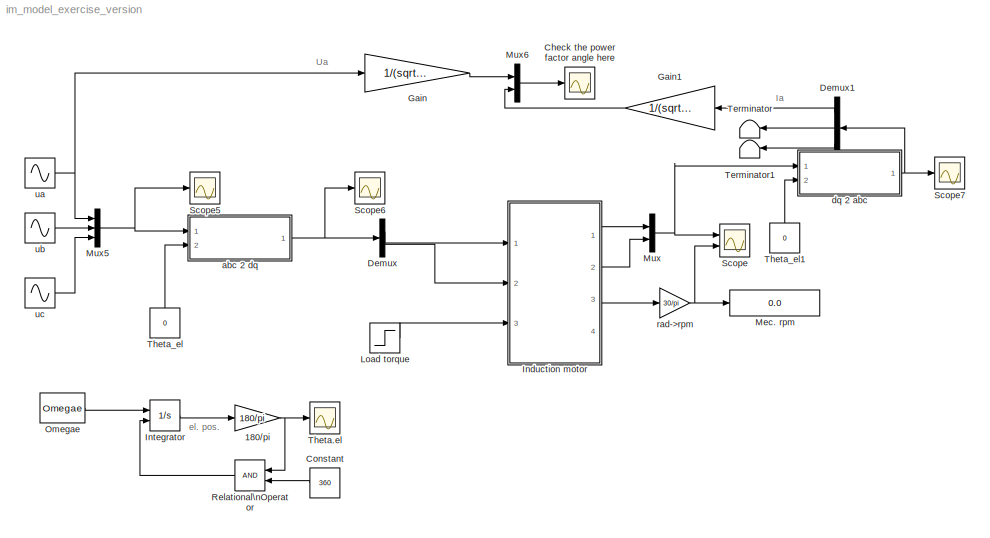
MODEL im_model_exercise_version
KIND model
CONFIG InitFcn = im_data
BLOCK [Gain] 180//pi
  Gain = 180/pi
  OutDataType = sfix(16)
  OutDataTypeMode = Inherit via internal rule
  OutDataTypeStr = Inherit: Inherit via internal rule
  OutScaling = 2^0
  ParamDataTypeStr = Inherit: Inherit via internal rule
  ParameterDataType = sfix(16)
  ParameterDataTypeMode = Inherit via internal rule
  ParameterScaling = 2^0
  SID = 1
  SaturateOnIntegerOverflow = off
BLOCK [Scope] Check the power factor angle here
  DataFormat = StructureWithTime
  Floating = off
  NumInputPorts = 1
  Ports = [1]
  SID = 2
  SampleTime = 0
  SaveName = ScopeData9
BLOCK [Constant] Constant
  OutDataType = sfix(16)
  OutScaling = 2^0
  SID = 3
  Value = 360
BLOCK [Demux] Demux
  DisplayOption = bar
  Outputs = 2
  Ports = [1, 2]
  SID = 4
BLOCK [Demux] Demux1
  DisplayOption = bar
  Outputs = 3
  Ports = [1, 3]
  SID = 5
BLOCK [Gain] Gain
  Gain = 1/(sqrt(2)*Un)
  OutDataType = sfix(16)
  OutDataTypeMode = Inherit via internal rule
  OutDataTypeStr = Inherit: Inherit via internal rule
  OutScaling = 2^0
  ParamDataTypeStr = Inherit: Inherit via internal rule
  ParameterDataType = sfix(16)
  ParameterDataTypeMode = Inherit via internal rule
  ParameterScaling = 2^0
  SID = 6
  SaturateOnIntegerOverflow = off
BLOCK [Gain] Gain1
  Gain = 1/(sqrt(2)*In)
  OutDataType = sfix(16)
  OutDataTypeMode = Inherit via internal rule
  OutDataTypeStr = Inherit: Inherit via internal rule
  OutScaling = 2^0
  ParamDataTypeStr = Inherit: Inherit via internal rule
  ParameterDataType = sfix(16)
  ParameterDataTypeMode = Inherit via internal rule
  ParameterScaling = 2^0
  SID = 7
  SaturateOnIntegerOverflow = off
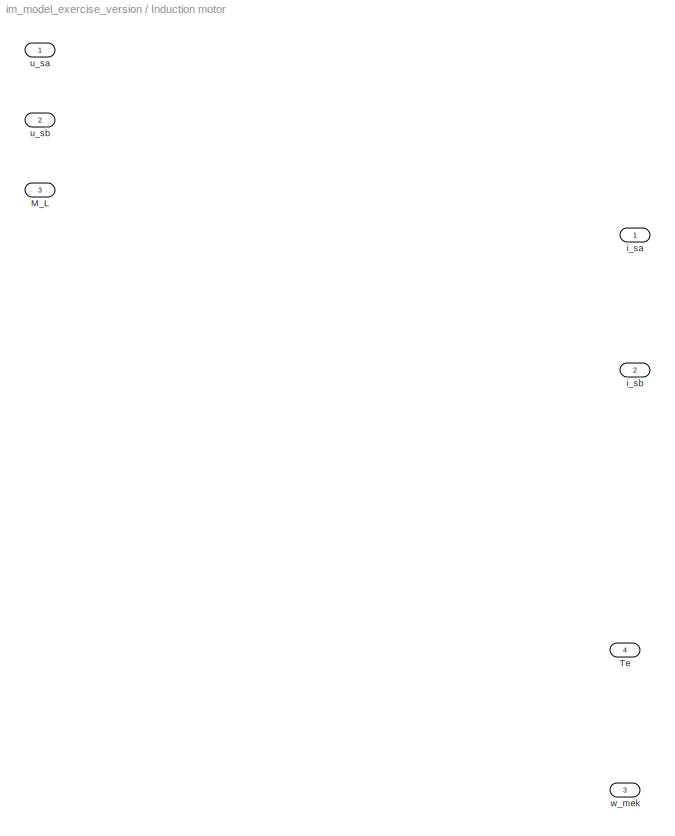
BLOCK [SubSystem] Induction motor
  FunctionWithSeparateData = off
  MaskHideContents = off
  MinAlgLoopOccurrences = off
  Opaque = off
  Ports = [3, 4]
  PropExecContextOutsideSubsystem = off
  RTWSystemCode = Auto
  RequestExecContextInheritance = off
  SID = 80
BLOCK [Inport] Induction motor/M_L
  IconDisplay = Port number
  OutDataType = sfix(16)
  OutScaling = 2^0
  Port = 3
  SID = 83
BLOCK [Outport] Induction motor/Te
  IconDisplay = Port number
  OutDataType = sfix(16)
  OutScaling = 2^0
  Port = 4
  SID = 160
BLOCK [Outport] Induction motor/i_sa
  IconDisplay = Port number
  OutDataType = sfix(16)
  OutScaling = 2^0
  SID = 110
BLOCK [Outport] Induction motor/i_sb
  IconDisplay = Port number
  OutDataType = sfix(16)
  OutScaling = 2^0
  Port = 2
  SID = 111
BLOCK [Inport] Induction motor/u_sa
  IconDisplay = Port number
  OutDataType = sfix(16)
  OutScaling = 2^0
  SID = 81
BLOCK [Inport] Induction motor/u_sb
  IconDisplay = Port number
  OutDataType = sfix(16)
  OutScaling = 2^0
  Port = 2
  SID = 82
BLOCK [Outport] Induction motor/w_mek
  IconDisplay = Port number
  OutDataType = sfix(16)
  OutScaling = 2^0
  Port = 3
  SID = 112
BLOCK [Integrator] Integrator
  ExternalReset = rising
  Ports = [2, 1]
  SID = 113
BLOCK [Step] Load torque
  After = 14.6912
  SID = 114
  SampleTime = 0
  Time = 0.25
BLOCK [Display] Mec. rpm
  Decimation = 1
  Lockdown = off
  Ports = [1]
  SID = 115
BLOCK [Mux] Mux
  DisplayOption = bar
  Inputs = 2
  Ports = [2, 1]
  SID = 116
BLOCK [Mux] Mux5
  DisplayOption = bar
  Inputs = 3
  Ports = [3, 1]
  SID = 121
BLOCK [Mux] Mux6
  DisplayOption = bar
  Inputs = 2
  Ports = [2, 1]
  SID = 122
BLOCK [Constant] Omegae
  OutDataType = sfix(16)
  OutScaling = 2^0
  SID = 123
  Value = Omegae
BLOCK [RelationalOperator] Relational\nOperator
  InputSameDT = off
  LogicOutDataTypeMode = boolean
  OutDataTypeStr = boolean
  Ports = [2, 1]
  SID = 124
BLOCK [Scope] Scope
  DataFormat = StructureWithTime
  Floating = off
  NumInputPorts = 2
  Ports = [2]
  SID = 125
  SampleTime = 0
  TimeRange = 0.5
  YMax = 40~1750
  YMin = -40~0
  ZoomMode = yonly
BLOCK [Scope] Scope5
  DataFormat = StructureWithTime
  Floating = off
  NumInputPorts = 1
  Ports = [1]
  SID = 130
  SampleTime = 0
  SaveName = ScopeData5
  ZoomMode = xonly
BLOCK [Scope] Scope6
  DataFormat = StructureWithTime
  Floating = off
  NumInputPorts = 1
  Ports = [1]
  SID = 131
  SampleTime = 0
  SaveName = ScopeData7
  ZoomMode = xonly
BLOCK [Scope] Scope7
  DataFormat = StructureWithTime
  Floating = off
  NumInputPorts = 1
  Ports = [1]
  SID = 132
  SampleTime = 0
  SaveName = ScopeData8
BLOCK [Terminator] Terminator
  SID = 133
BLOCK [Terminator] Terminator1
  SID = 134
BLOCK [Scope] Theta.el
  DataFormat = StructureWithTime
  Floating = off
  NumInputPorts = 1
  Ports = [1]
  SID = 135
  SampleTime = 0
  SaveName = ScopeData6
  YMax = 225
  YMin = -225
  ZoomMode = xonly
BLOCK [Constant] Theta_el
  OutDataType = sfix(16)
  OutScaling = 2^0
  SID = 136
  Value = 0
BLOCK [Constant] Theta_el1
  OutDataType = sfix(16)
  OutScaling = 2^0
  SID = 137
  Value = 0
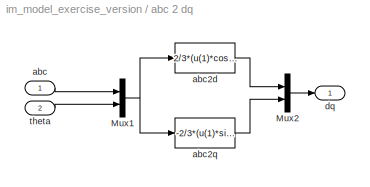
BLOCK [SubSystem] abc 2 dq
  FunctionWithSeparateData = off
  MaskHideContents = off
  MinAlgLoopOccurrences = off
  Opaque = off
  Ports = [2, 1]
  PropExecContextOutsideSubsystem = off
  RTWSystemCode = Auto
  RequestExecContextInheritance = off
  SID = 138
BLOCK [Mux] abc 2 dq/Mux1
  DisplayOption = bar
  Inputs = 2
  Ports = [2, 1]
  SID = 141
BLOCK [Mux] abc 2 dq/Mux2
  DisplayOption = bar
  Inputs = 2
  Ports = [2, 1]
  SID = 142
BLOCK [Inport] abc 2 dq/abc
  IconDisplay = Port number
  OutDataType = sfix(16)
  OutScaling = 2^0
  SID = 139
BLOCK [Fcn] abc 2 dq/abc2d
  Expr = 2/3*(u(1)*cos(u(4))+u(2)*cos(u(4)-2*pi/3)+u(3)*cos(u(4)-4*pi/3))
  SID = 143
BLOCK [Fcn] abc 2 dq/abc2q
  Expr = -2/3*(u(1)*sin(u(4))+u(2)*sin(u(4)-2*pi/3)+u(3)*sin(u(4)-4*pi/3))
  SID = 144
BLOCK [Outport] abc 2 dq/dq
  IconDisplay = Port number
  OutDataType = sfix(16)
  OutScaling = 2^0
  SID = 145
BLOCK [Inport] abc 2 dq/theta
  IconDisplay = Port number
  OutDataType = sfix(16)
  OutScaling = 2^0
  Port = 2
  SID = 140
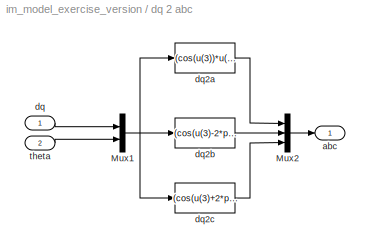
BLOCK [SubSystem] dq 2 abc
  FunctionWithSeparateData = off
  MaskHideContents = off
  MinAlgLoopOccurrences = off
  Opaque = off
  Ports = [2, 1]
  PropExecContextOutsideSubsystem = off
  RTWSystemCode = Auto
  RequestExecContextInheritance = off
  SID = 146
BLOCK [Mux] dq 2 abc/Mux1
  DisplayOption = bar
  Inputs = 2
  Ports = [2, 1]
  SID = 149
BLOCK [Mux] dq 2 abc/Mux2
  DisplayOption = bar
  Inputs = 3
  Ports = [3, 1]
  SID = 150
BLOCK [Outport] dq 2 abc/abc
  IconDisplay = Port number
  OutDataType = sfix(16)
  OutScaling = 2^0
  SID = 154
BLOCK [Inport] dq 2 abc/dq
  IconDisplay = Port number
  OutDataType = sfix(16)
  OutScaling = 2^0
  SID = 147
BLOCK [Fcn] dq 2 abc/dq2a
  Expr = (cos(u(3))*u(1)-sin(u(3))*u(2))
  SID = 151
BLOCK [Fcn] dq 2 abc/dq2b
  Expr = (cos(u(3)-2*pi/3)*u(1)-sin(u(3)-2*pi/3)*u(2))
  SID = 152
BLOCK [Fcn] dq 2 abc/dq2c
  Expr = (cos(u(3)+2*pi/3)*u(1)-sin(u(3)+2*pi/3)*u(2))
  SID = 153
BLOCK [Inport] dq 2 abc/theta
  IconDisplay = Port number
  OutDataType = sfix(16)
  OutScaling = 2^0
  Port = 2
  SID = 148
BLOCK [Gain] rad->rpm
  Gain = 30/pi
  OutDataType = sfix(16)
  OutScaling = 2^0
  ParameterDataType = sfix(16)
  ParameterScaling = 2^0
  SID = 155
BLOCK [Sin] ua
  Amplitude = sqrt(2)*Un
  Bias = 0
  Frequency = Omegae
  Offset = 0
  Phase = pi/2
  Ports = [0, 1]
  SID = 156
  SampleTime = 0
  Samples = 10
BLOCK [Sin] ub
  Amplitude = sqrt(2)*Un
  Bias = 0
  Frequency = Omegae
  Offset = 0
  Phase = pi/2-120/180*pi
  Ports = [0, 1]
  SID = 157
  SampleTime = 0
  Samples = 10
BLOCK [Sin] uc
  Amplitude = sqrt(2)*Un
  Bias = 0
  Frequency = Omegae
  Offset = 0
  Phase = pi/2-240/180*pi
  Ports = [0, 1]
  SID = 158
  SampleTime = 0
  Samples = 10
ANNOTATION (root): Ia
ANNOTATION (root): Ua
ANNOTATION (root): el. pos.
NET 180//pi:1 -> Relational\nOperator:1, Theta.el:1
LINE Constant:1 -> Relational\nOperator:2
LINE Demux1:1 -> Gain1:1
LINE Demux1:2 -> Terminator:1
LINE Demux1:3 -> Terminator1:1
LINE Demux:1 -> Induction motor:1
LINE Demux:2 -> Induction motor:2
LINE Gain1:1 -> Mux6:2
LINE Gain:1 -> Mux6:1
LINE Induction motor:1 -> Mux:1
LINE Induction motor:2 -> Mux:2
LINE Induction motor:3 -> rad->rpm:1
LINE Integrator:1 -> 180//pi:1
LINE Load torque:1 -> Induction motor:3
NET Mux5:1 -> Scope5:1, abc 2 dq:1
LINE Mux6:1 -> Check the power factor angle here:1
NET Mux:1 -> Scope:1, dq 2 abc:1
LINE Omegae:1 -> Integrator:1
LINE Relational\nOperator:1 -> Integrator:2
LINE Theta_el1:1 -> dq 2 abc:2
LINE Theta_el:1 -> abc 2 dq:2
NET abc 2 dq/Mux1:1 -> abc 2 dq/abc2d:1, abc 2 dq/abc2q:1
LINE abc 2 dq/Mux2:1 -> abc 2 dq/dq:1
LINE abc 2 dq/abc2d:1 -> abc 2 dq/Mux2:1
LINE abc 2 dq/abc2q:1 -> abc 2 dq/Mux2:2
LINE abc 2 dq/abc:1 -> abc 2 dq/Mux1:1
LINE abc 2 dq/theta:1 -> abc 2 dq/Mux1:2
NET abc 2 dq:1 -> Demux:1, Scope6:1
NET dq 2 abc/Mux1:1 -> dq 2 abc/dq2a:1, dq 2 abc/dq2b:1, dq 2 abc/dq2c:1
LINE dq 2 abc/Mux2:1 -> dq 2 abc/abc:1
LINE dq 2 abc/dq2a:1 -> dq 2 abc/Mux2:1
LINE dq 2 abc/dq2b:1 -> dq 2 abc/Mux2:2
LINE dq 2 abc/dq2c:1 -> dq 2 abc/Mux2:3
LINE dq 2 abc/dq:1 -> dq 2 abc/Mux1:1
LINE dq 2 abc/theta:1 -> dq 2 abc/Mux1:2
NET dq 2 abc:1 -> Demux1:1, Scope7:1
NET rad->rpm:1 -> Mec. rpm:1, Scope:2
NET ua:1 -> Gain:1, Mux5:1
LINE ub:1 -> Mux5:2
LINE uc:1 -> Mux5:3
note: NET lines group one-source signal fan-out (src -> all destinations, sorted); 1:1 wires keep LINE
